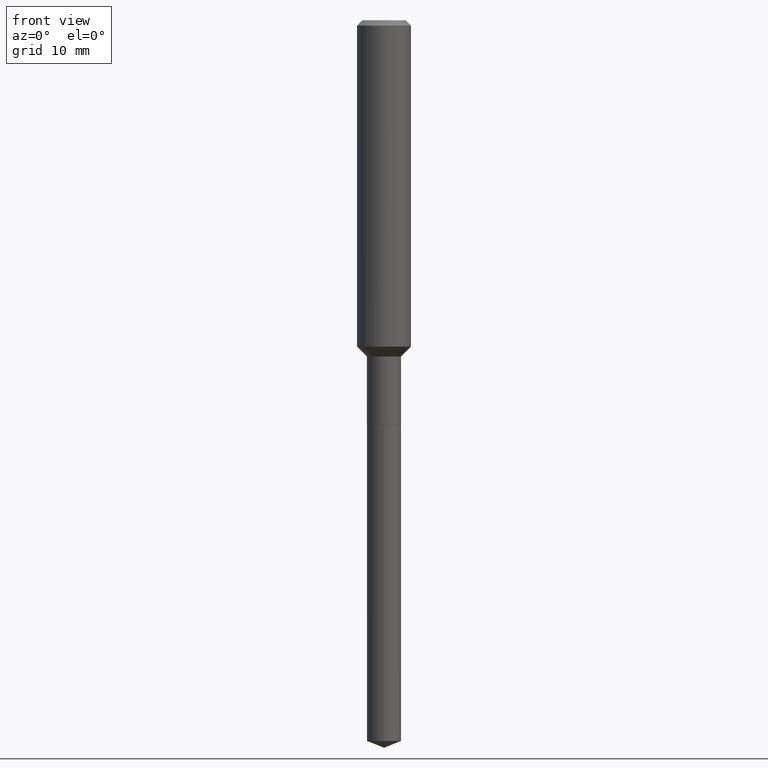
[diagram: clean part render]
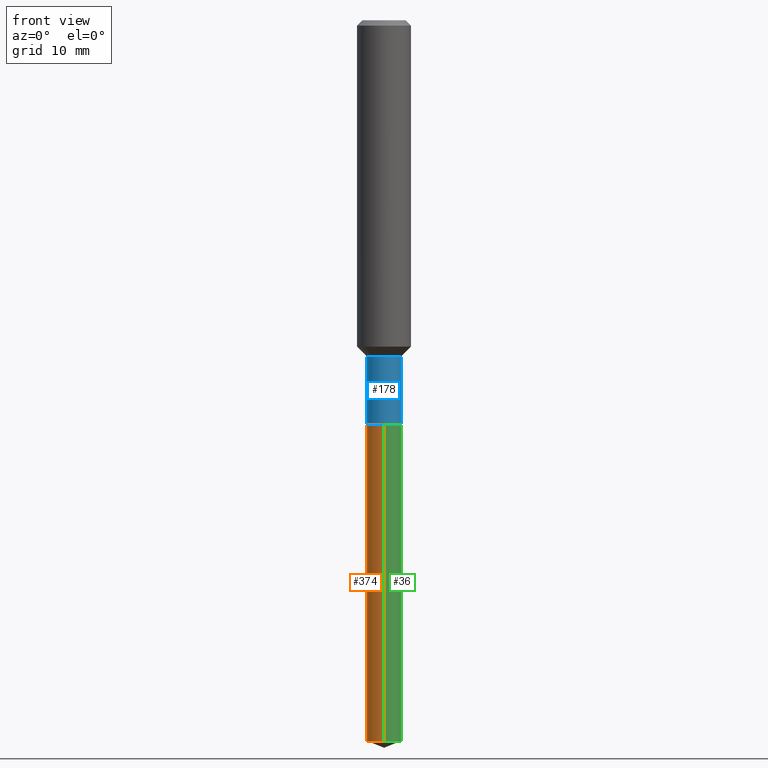
[diagram: same view with three faces highlighted in distinct colors, each labeled with its STEP entity id]
A machine part, front view with three faces highlighted in distinct colors.
Their STEP definitions:

[orange] entity #374 — the highlighted cylindrical surface (edge-blend (fillet) strip) has radius 1.8999 mm, axis along (-0, 0, 1).
#11 = EDGE_LOOP ( 'NONE', ( #322, #134, #445, #466 ) ) ;
#25 = CARTESIAN_POINT ( 'NONE',  ( 5.314859663485982660E-16, 0.07479999999999381588, -1.771700000000000719 ) ) ;
#43 = VERTEX_POINT ( 'NONE', #311 ) ;
#44 = DIRECTION ( 'NONE',  ( -6.982962677686266711E-15, -1.000000000000000000, 0.000000000000000000 ) ) ;
#50 = VERTEX_POINT ( 'NONE', #453 ) ;
#54 = CIRCLE ( 'NONE', #184, 0.07480000000000000537 ) ;
#60 = VECTOR ( 'NONE', #104, 39.37007874015748143 ) ;
#67 = CARTESIAN_POINT ( 'NONE',  ( 4.332637083918206987E-29, -6.185857488028401870E-15, -1.771700000000000497 ) ) ;
#102 = EDGE_CURVE ( 'NONE', #376, #43, #329, .T. ) ;
#104 = DIRECTION ( 'NONE',  ( -2.445498752953222356E-29, 3.491438453366782686E-15, 1.000000000000000000 ) ) ;
#115 = DIRECTION ( 'NONE',  ( -2.445498752953222356E-29, 3.491438453366782686E-15, 1.000000000000000000 ) ) ;
#133 = VERTEX_POINT ( 'NONE', #239 ) ;
#134 = ORIENTED_EDGE ( 'NONE', *, *, #173, .T. ) ;
#145 = DIRECTION ( 'NONE',  ( -2.445498752953222356E-29, 3.491438453366782686E-15, 1.000000000000000000 ) ) ;
#173 = EDGE_CURVE ( 'NONE', #133, #50, #54, .T. ) ;
#179 = VECTOR ( 'NONE', #145, 39.37007874015748143 ) ;
#184 = AXIS2_PLACEMENT_3D ( 'NONE', #248, #454, #44 ) ;
#193 = CARTESIAN_POINT ( 'NONE',  ( -5.223256082908894131E-16, -0.07480000000000619487, -1.771700000000000053 ) ) ;
#212 = DIRECTION ( 'NONE',  ( -6.982962677686265922E-15, -1.000000000000000000, 3.652203200085913145E-15 ) ) ;
#213 = CYLINDRICAL_SURFACE ( 'NONE', #304, 0.07480000000000000537 ) ;
#239 = CARTESIAN_POINT ( 'NONE',  ( 5.314859663486322856E-16, 0.07479999999998898641, -3.159535496424002776 ) ) ;
#248 = CARTESIAN_POINT ( 'NONE',  ( 7.726587059727322171E-29, -1.103139970719054150E-14, -3.159535496424002776 ) ) ;
#258 = FACE_OUTER_BOUND ( 'NONE', #11, .T. ) ;
#263 = EDGE_CURVE ( 'NONE', #133, #376, #479, .T. ) ;
#290 = DIRECTION ( 'NONE',  ( -2.445498752953222356E-29, 3.491438453366782686E-15, 1.000000000000000000 ) ) ;
#304 = AXIS2_PLACEMENT_3D ( 'NONE', #67, #115, #446 ) ;
#311 = CARTESIAN_POINT ( 'NONE',  ( -5.223256082908894131E-16, -0.07480000000000619487, -1.771700000000000053 ) ) ;
#322 = ORIENTED_EDGE ( 'NONE', *, *, #263, .F. ) ;
#325 = CARTESIAN_POINT ( 'NONE',  ( 4.332637083918206987E-29, -6.185857488028401870E-15, -1.771700000000000497 ) ) ;
#329 = CIRCLE ( 'NONE', #389, 0.07480000000000000537 ) ;
#337 = LINE ( 'NONE', #193, #60 ) ;
#374 = ADVANCED_FACE ( 'NONE', ( #258 ), #213, .T. ) ;
#376 = VERTEX_POINT ( 'NONE', #474 ) ;
#389 = AXIS2_PLACEMENT_3D ( 'NONE', #325, #290, #212 ) ;
#445 = ORIENTED_EDGE ( 'NONE', *, *, #464, .T. ) ;
#446 = DIRECTION ( 'NONE',  ( -6.982962677686266711E-15, -1.000000000000000000, 3.652203200085913145E-15 ) ) ;
#453 = CARTESIAN_POINT ( 'NONE',  ( -5.223256082908554921E-16, -0.07480000000001103821, -3.159535496424002776 ) ) ;
#454 = DIRECTION ( 'NONE',  ( -2.445498752953222356E-29, 3.491438453366782686E-15, 1.000000000000000000 ) ) ;
#464 = EDGE_CURVE ( 'NONE', #50, #43, #337, .T. ) ;
#466 = ORIENTED_EDGE ( 'NONE', *, *, #102, .F. ) ;
#474 = CARTESIAN_POINT ( 'NONE',  ( 5.314859663486323842E-16, 0.07479999999999380200, -1.771700000000000719 ) ) ;
#479 = LINE ( 'NONE', #25, #179 ) ;

[blue] entity #178 — the highlighted cylindrical surface (edge-blend (fillet) strip) has radius 1.8999 mm, axis along (-0, 0, 1).
#34 = CARTESIAN_POINT ( 'NONE',  ( -0.07479999999999997762, -5.133267931857507370E-15, -1.473700000000000232 ) ) ;
#35 = LINE ( 'NONE', #348, #199 ) ;
#39 = VERTEX_POINT ( 'NONE', #411 ) ;
#53 = EDGE_CURVE ( 'NONE', #228, #183, #35, .T. ) ;
#55 = DIRECTION ( 'NONE',  ( -2.445468806185136877E-29, 3.491481338843145188E-15, 1.000000000000000000 ) ) ;
#62 = DIRECTION ( 'NONE',  ( -2.445468806185136877E-29, 3.491481338843145188E-15, 1.000000000000000000 ) ) ;
#85 = CIRCLE ( 'NONE', #364, 0.07479999999999997762 ) ;
#97 = CARTESIAN_POINT ( 'NONE',  ( 4.331414349515115307E-29, -6.184111747358981944E-15, -1.771200000000000552 ) ) ;
#100 = DIRECTION ( 'NONE',  ( 1.000000000000000000, -6.982962677686261977E-15, 0.000000000000000000 ) ) ;
#105 = ORIENTED_EDGE ( 'NONE', *, *, #114, .F. ) ;
#114 = EDGE_CURVE ( 'NONE', #417, #183, #85, .T. ) ;
#178 = ADVANCED_FACE ( 'NONE', ( #431 ), #397, .T. ) ;
#183 = VERTEX_POINT ( 'NONE', #486 ) ;
#199 = VECTOR ( 'NONE', #62, 39.37007874015748143 ) ;
#228 = VERTEX_POINT ( 'NONE', #372 ) ;
#234 = DIRECTION ( 'NONE',  ( -2.445468806185136597E-29, 3.491481338843145583E-15, 1.000000000000000000 ) ) ;
#240 = ORIENTED_EDGE ( 'NONE', *, *, #362, .F. ) ;
#241 = DIRECTION ( 'NONE',  ( 1.000000000000000000, -6.982962677686264344E-15, 0.000000000000000000 ) ) ;
#256 = DIRECTION ( 'NONE',  ( -2.445468806185136597E-29, 3.491481338843145583E-15, 1.000000000000000000 ) ) ;
#257 = CARTESIAN_POINT ( 'NONE',  ( -0.07479999999999999150, 5.314859663485548786E-16, -3.679363447510669380E-30 ) ) ;
#276 = DIRECTION ( 'NONE',  ( -2.445468806185136597E-29, 3.491481338843145583E-15, 1.000000000000000000 ) ) ;
#286 = AXIS2_PLACEMENT_3D ( 'NONE', #97, #256, #100 ) ;
#312 = EDGE_LOOP ( 'NONE', ( #240, #450, #396, #105 ) ) ;
#342 = VECTOR ( 'NONE', #55, 39.37007874015748143 ) ;
#344 = CARTESIAN_POINT ( 'NONE',  ( 0.000000000000000000, 0.000000000000000000, 0.000000000000000000 ) ) ;
#345 = EDGE_CURVE ( 'NONE', #39, #228, #370, .T. ) ;
#348 = CARTESIAN_POINT ( 'NONE',  ( 0.07479999999999999150, -5.223256082909327018E-16, 3.647380228295360164E-30 ) ) ;
#362 = EDGE_CURVE ( 'NONE', #39, #417, #403, .T. ) ;
#364 = AXIS2_PLACEMENT_3D ( 'NONE', #434, #234, #241 ) ;
#368 = AXIS2_PLACEMENT_3D ( 'NONE', #344, #276, #384 ) ;
#370 = CIRCLE ( 'NONE', #286, 0.07480000000000000537 ) ;
#372 = CARTESIAN_POINT ( 'NONE',  ( 0.07480000000000000537, -6.706437355649913956E-15, -1.771200000000000552 ) ) ;
#384 = DIRECTION ( 'NONE',  ( 1.000000000000000000, -6.982962677686266711E-15, 4.876176775795936353E-29 ) ) ;
#396 = ORIENTED_EDGE ( 'NONE', *, *, #53, .T. ) ;
#397 = CYLINDRICAL_SURFACE ( 'NONE', #368, 0.07479999999999999150 ) ;
#403 = LINE ( 'NONE', #257, #342 ) ;
#411 = CARTESIAN_POINT ( 'NONE',  ( -0.07480000000000000537, -5.133267931857507370E-15, -1.771200000000000552 ) ) ;
#417 = VERTEX_POINT ( 'NONE', #34 ) ;
#431 = FACE_OUTER_BOUND ( 'NONE', #312, .T. ) ;
#434 = CARTESIAN_POINT ( 'NONE',  ( 3.603887379675036317E-29, -5.145396049053143934E-15, -1.473700000000000232 ) ) ;
#450 = ORIENTED_EDGE ( 'NONE', *, *, #345, .T. ) ;
#486 = CARTESIAN_POINT ( 'NONE',  ( 0.07479999999999997762, -5.667721657344076734E-15, -1.473700000000000232 ) ) ;

[green] entity #36 — the highlighted cylindrical surface (edge-blend (fillet) strip) has radius 1.8999 mm, axis along (-0, 0, 1).
#19 = EDGE_CURVE ( 'NONE', #43, #376, #278, .T. ) ;
#25 = CARTESIAN_POINT ( 'NONE',  ( 5.314859663485982660E-16, 0.07479999999999381588, -1.771700000000000719 ) ) ;
#36 = ADVANCED_FACE ( 'NONE', ( #74 ), #485, .T. ) ;
#43 = VERTEX_POINT ( 'NONE', #311 ) ;
#50 = VERTEX_POINT ( 'NONE', #453 ) ;
#52 = AXIS2_PLACEMENT_3D ( 'NONE', #272, #297, #232 ) ;
#58 = DIRECTION ( 'NONE',  ( -2.445498752953222356E-29, 3.491438453366782686E-15, 1.000000000000000000 ) ) ;
#60 = VECTOR ( 'NONE', #104, 39.37007874015748143 ) ;
#74 = FACE_OUTER_BOUND ( 'NONE', #81, .T. ) ;
#81 = EDGE_LOOP ( 'NONE', ( #340, #262, #131, #244 ) ) ;
#104 = DIRECTION ( 'NONE',  ( -2.445498752953222356E-29, 3.491438453366782686E-15, 1.000000000000000000 ) ) ;
#108 = DIRECTION ( 'NONE',  ( -6.982962677686266711E-15, -1.000000000000000000, 3.652203200085913145E-15 ) ) ;
#131 = ORIENTED_EDGE ( 'NONE', *, *, #19, .F. ) ;
#133 = VERTEX_POINT ( 'NONE', #239 ) ;
#145 = DIRECTION ( 'NONE',  ( -2.445498752953222356E-29, 3.491438453366782686E-15, 1.000000000000000000 ) ) ;
#179 = VECTOR ( 'NONE', #145, 39.37007874015748143 ) ;
#192 = DIRECTION ( 'NONE',  ( -2.445498752953222356E-29, 3.491438453366782686E-15, 1.000000000000000000 ) ) ;
#193 = CARTESIAN_POINT ( 'NONE',  ( -5.223256082908894131E-16, -0.07480000000000619487, -1.771700000000000053 ) ) ;
#232 = DIRECTION ( 'NONE',  ( -6.982962677686265922E-15, -1.000000000000000000, 3.652203200085913145E-15 ) ) ;
#239 = CARTESIAN_POINT ( 'NONE',  ( 5.314859663486322856E-16, 0.07479999999998898641, -3.159535496424002776 ) ) ;
#244 = ORIENTED_EDGE ( 'NONE', *, *, #464, .F. ) ;
#262 = ORIENTED_EDGE ( 'NONE', *, *, #263, .T. ) ;
#263 = EDGE_CURVE ( 'NONE', #133, #376, #479, .T. ) ;
#266 = AXIS2_PLACEMENT_3D ( 'NONE', #447, #192, #108 ) ;
#272 = CARTESIAN_POINT ( 'NONE',  ( 4.332637083918206987E-29, -6.185857488028401870E-15, -1.771700000000000497 ) ) ;
#278 = CIRCLE ( 'NONE', #52, 0.07480000000000000537 ) ;
#297 = DIRECTION ( 'NONE',  ( -2.445498752953222356E-29, 3.491438453366782686E-15, 1.000000000000000000 ) ) ;
#311 = CARTESIAN_POINT ( 'NONE',  ( -5.223256082908894131E-16, -0.07480000000000619487, -1.771700000000000053 ) ) ;
#334 = EDGE_CURVE ( 'NONE', #50, #133, #380, .T. ) ;
#337 = LINE ( 'NONE', #193, #60 ) ;
#340 = ORIENTED_EDGE ( 'NONE', *, *, #334, .T. ) ;
#376 = VERTEX_POINT ( 'NONE', #474 ) ;
#380 = CIRCLE ( 'NONE', #449, 0.07480000000000000537 ) ;
#400 = CARTESIAN_POINT ( 'NONE',  ( 7.726587059727322171E-29, -1.103139970719054150E-14, -3.159535496424002776 ) ) ;
#443 = DIRECTION ( 'NONE',  ( -6.982962677686266711E-15, -1.000000000000000000, 0.000000000000000000 ) ) ;
#447 = CARTESIAN_POINT ( 'NONE',  ( 4.332637083918206987E-29, -6.185857488028401870E-15, -1.771700000000000497 ) ) ;
#449 = AXIS2_PLACEMENT_3D ( 'NONE', #400, #58, #443 ) ;
#453 = CARTESIAN_POINT ( 'NONE',  ( -5.223256082908554921E-16, -0.07480000000001103821, -3.159535496424002776 ) ) ;
#464 = EDGE_CURVE ( 'NONE', #50, #43, #337, .T. ) ;
#474 = CARTESIAN_POINT ( 'NONE',  ( 5.314859663486323842E-16, 0.07479999999999380200, -1.771700000000000719 ) ) ;
#479 = LINE ( 'NONE', #25, #179 ) ;
#485 = CYLINDRICAL_SURFACE ( 'NONE', #266, 0.07480000000000000537 ) ;